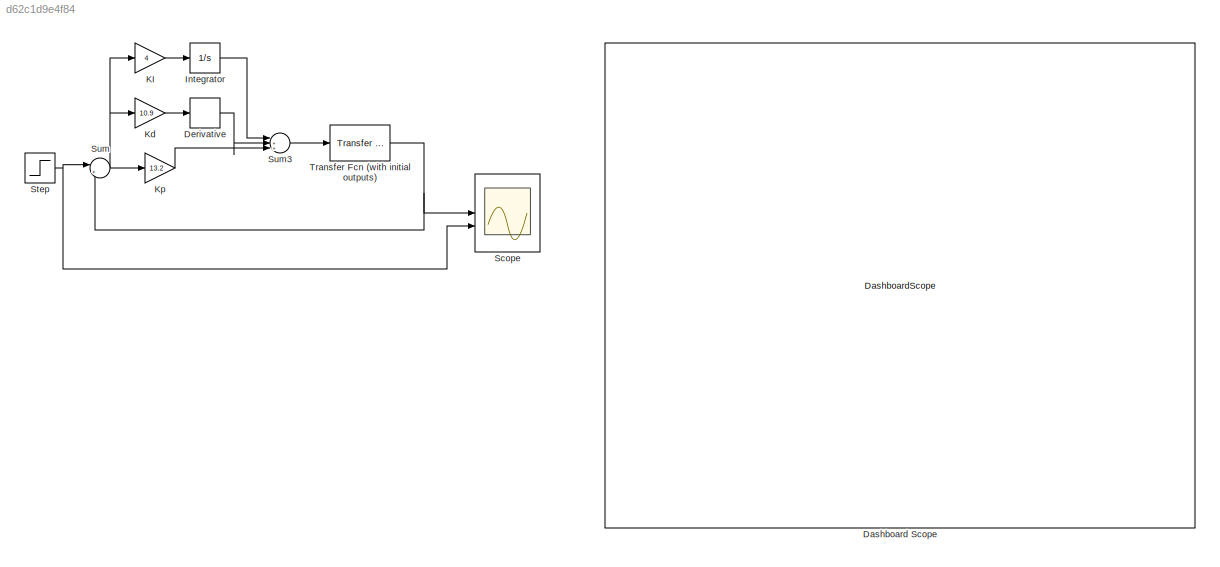
MODEL slx_d62c1d9e4f84
KIND model
CONFIG AbsTol = auto
CONFIG EnableMultiTasking = off
CONFIG FixedStep = auto
CONFIG MaxStep = auto
CONFIG MinStep = auto
CONFIG RelTol = 1e-3
CONFIG SampleTimeConstraint = Unconstrained
CONFIG SolverName = VariableStepAuto
CONFIG StartTime = 0.0
CONFIG StopTime = 35
BLOCK [DashboardScope] Dashboard Scope
BLOCK [Derivative] Derivative
BLOCK [Integrator] Integrator
  NameLocation = right
BLOCK [Gain] KI
  Gain = 4
BLOCK [Gain] Kd
  Gain = 10.9
BLOCK [Gain] Kp
  Gain = 13.2
BLOCK [Scope] Scope
  Floating = off
  NumInputPorts = 2
  ScopeSpecificationString = Simulink.scopes.TimeScopeBlockCfg('CurrentConfiguration', extmgr.ConfigurationSet(extmgr.Configuration('Core','General UI',true,'FigureColor',[1 1 1]),extmgr.Configuration('Core','Source UI',true),extmgr.Configuration('Sources','WiredSimulink',true),extmgr.Configuration('Visuals','Time Domain',true,'SerializedDisplays',{struct('MinYLimReal','-0.15322','MaxYLimReal','1.37898','YLabelReal','','MinYL...<+1588ch>
BLOCK [Step] Step
  SampleTime = 0
  Time = 0.1
BLOCK [Sum] Sum
  Inputs = |+-
BLOCK [Sum] Sum3
  Inputs = |+++
BLOCK [Reference] Transfer Fcn (with initial outputs)  REF=simulink_extras/Additional
Linear/Transfer Fcn
(with initial outputs)
  SourceBlock = simulink_extras/Additional\nLinear/Transfer Fcn\n(with initial outputs)
  SourceType = Transfer Function with Initial Outputs
LINE Derivative:1 -> Sum3:2
LINE Integrator:1 -> Sum3:1
LINE KI:1 -> Integrator:1
LINE Kd:1 -> Derivative:1
LINE Kp:1 -> Sum3:3
NET Step:1 -> Scope:2, Sum:1
LINE Sum3:1 -> Transfer Fcn (with initial outputs):1
NET Sum:1 -> KI:1, Kd:1, Kp:1
NET Transfer Fcn (with initial outputs):1 -> Scope:1, Sum:2
note: NET lines group one-source signal fan-out (src -> all destinations, sorted); 1:1 wires keep LINE
